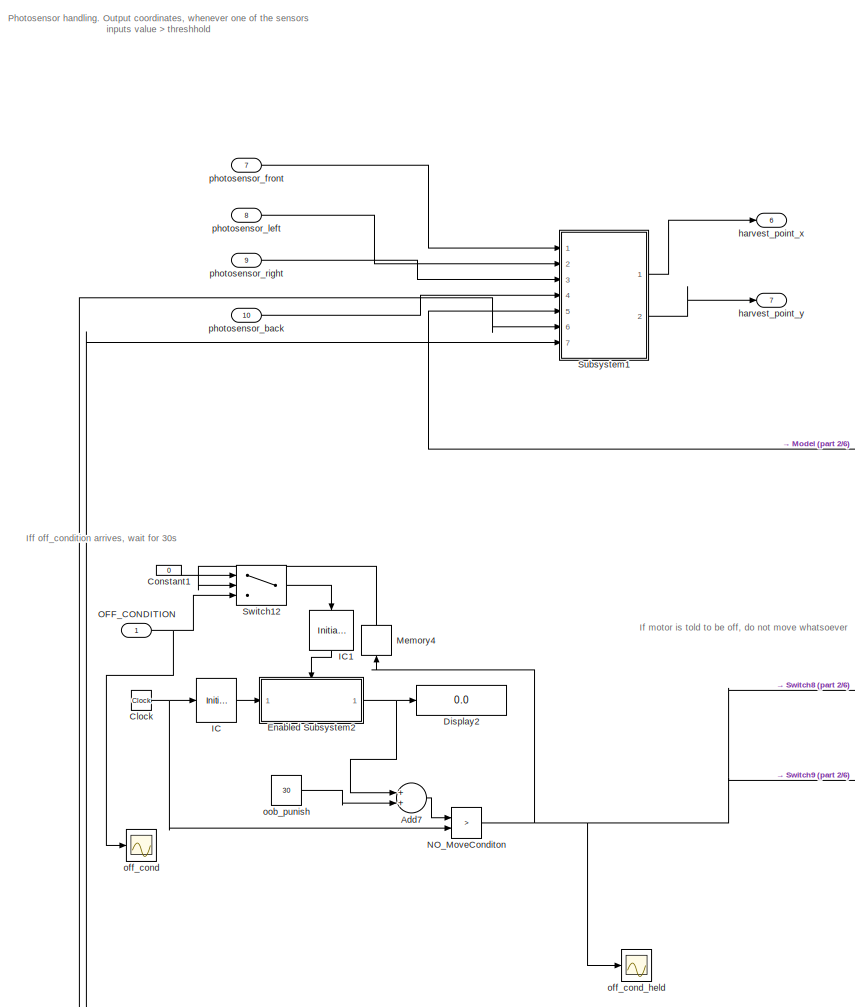
[diagram: root canvas - part 1/6, top left region]
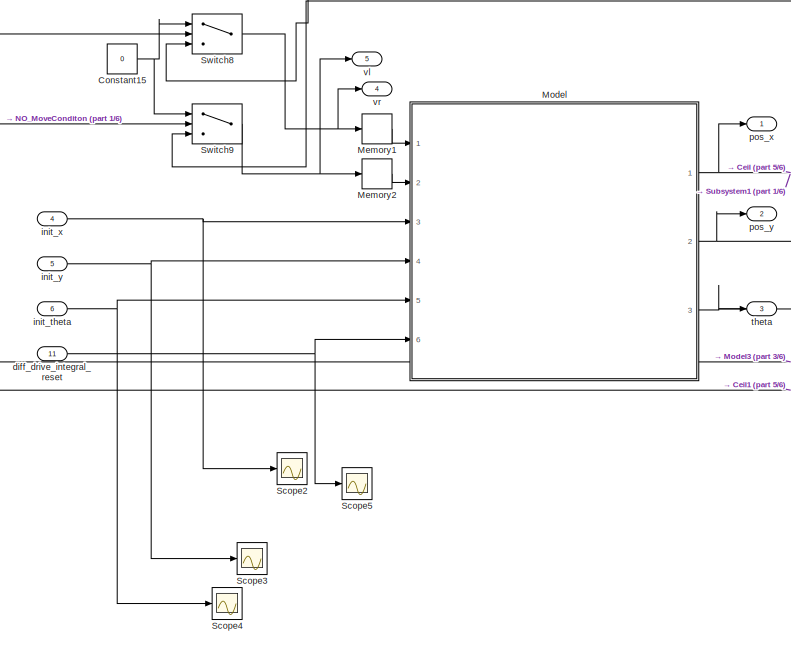
[diagram: root canvas - part 2/6, central region]
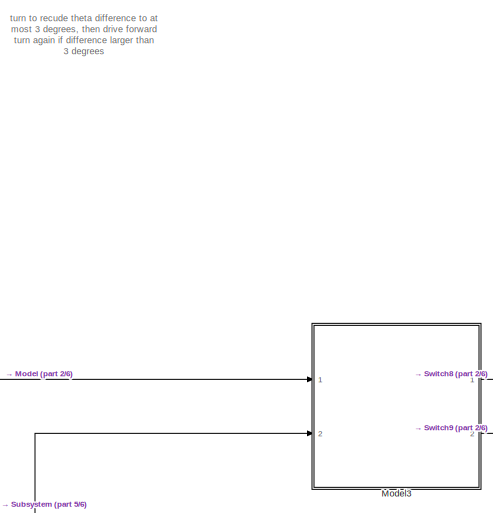
[diagram: root canvas - part 3/6, middle right region]
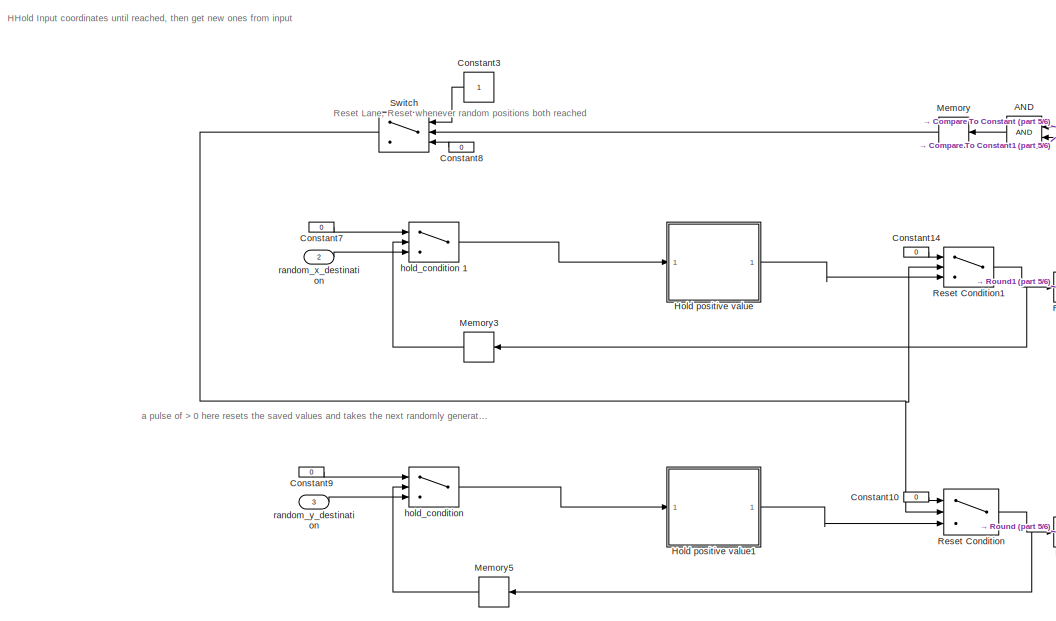
[diagram: root canvas - part 4/6, bottom left region]
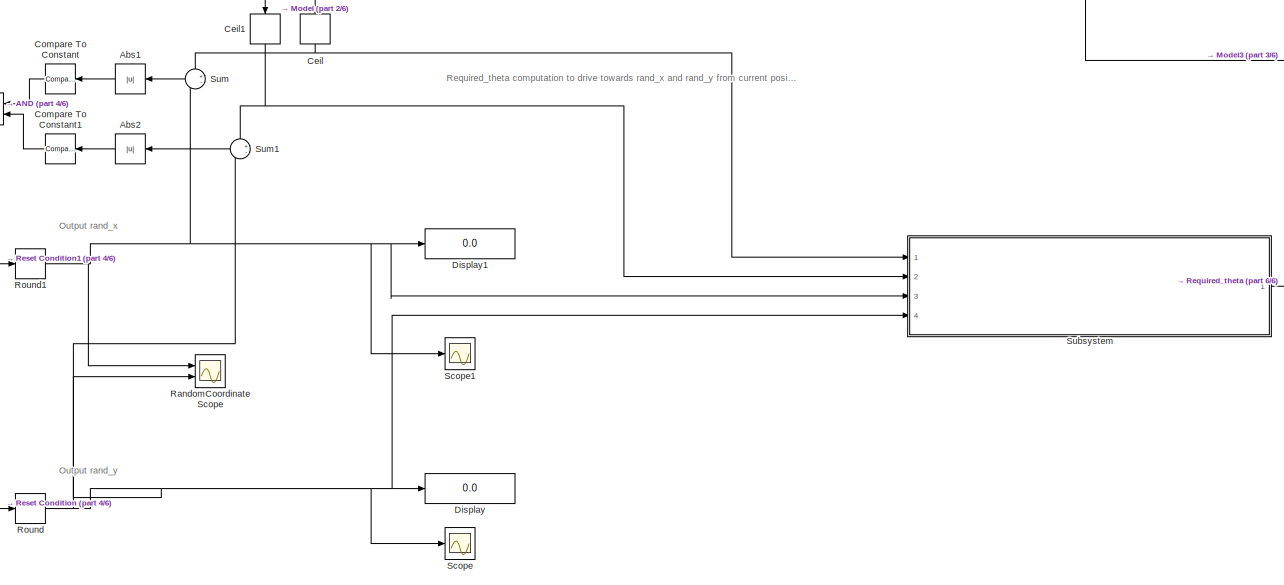
[diagram: root canvas - part 5/6, bottom right region]
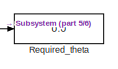
[diagram: root canvas - part 6/6, bottom right region]
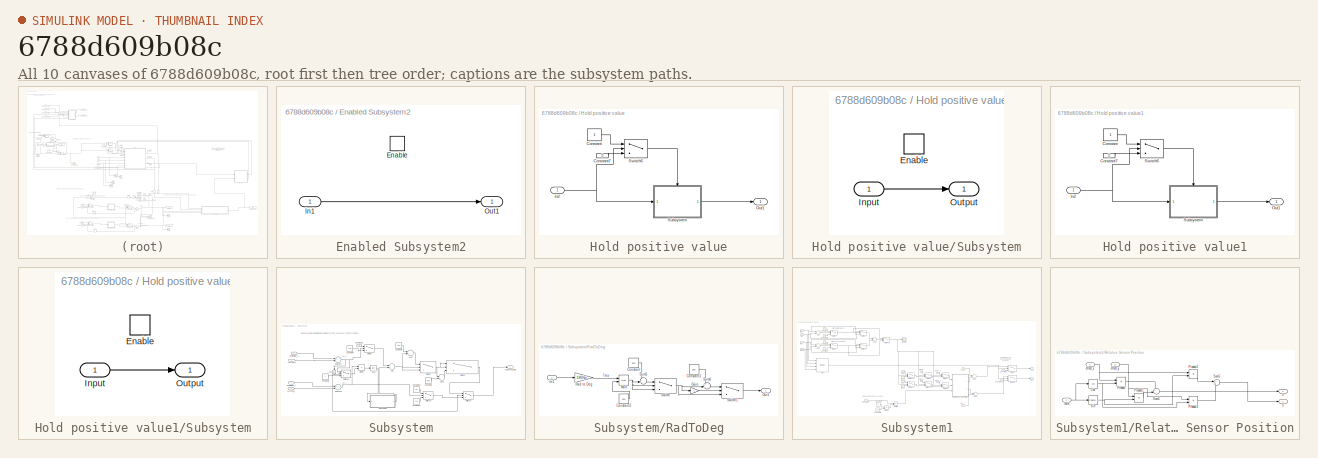
[diagram: thumbnail index - all 10 canvases of the model, root first then tree order]
MODEL slx_6788d609b08c
KIND model
CONFIG AbsTol = auto
CONFIG EnableMultiTasking = off
CONFIG FixedStep = 0.01
CONFIG MaxStep = auto
CONFIG MinStep = auto
CONFIG RelTol = 1e-5
CONFIG SampleTimeConstraint = Unconstrained
CONFIG Solver = VariableStepAuto
CONFIG SolverName = VariableStepAuto
CONFIG StartTime = 0.0
CONFIG StopTime = 500
BLOCK [Logic] AND
  AllPortsSameDT = off
  IconShape = distinctive
  OutDataTypeStr = boolean
  Ports = [2, 1]
BLOCK [Abs] Abs1
  SaturateOnIntegerOverflow = off
BLOCK [Abs] Abs2
  SaturateOnIntegerOverflow = off
BLOCK [Sum] Add7
  InputSameDT = off
  OutDataTypeStr = Inherit: Inherit via internal rule
  Ports = [2, 1]
  SaturateOnIntegerOverflow = off
BLOCK [Rounding] Ceil
  Operator = ceil
BLOCK [Rounding] Ceil1
  Operator = ceil
BLOCK [Clock] Clock
BLOCK [Reference] Compare To Constant  REF=simulink/Logic and Bit
Operations/Compare
To Constant
  Ports = [1, 1]
  SourceBlock = simulink/Logic and Bit\nOperations/Compare\nTo Constant
  SourceProductBaseCode = SL
  SourceProductName = Simulink
  SourceType = Compare To Constant
BLOCK [Reference] Compare To Constant1  REF=simulink/Logic and Bit
Operations/Compare
To Constant
  Ports = [1, 1]
  SourceBlock = simulink/Logic and Bit\nOperations/Compare\nTo Constant
  SourceProductBaseCode = SL
  SourceProductName = Simulink
  SourceType = Compare To Constant
BLOCK [Constant] Constant1
  Value = 0
BLOCK [Constant] Constant10
  Value = 0
BLOCK [Constant] Constant14
  Value = 0
BLOCK [Constant] Constant15
  Value = 0
BLOCK [Constant] Constant3
BLOCK [Constant] Constant7
  Value = 0
BLOCK [Constant] Constant8
  Value = 0
BLOCK [Constant] Constant9
  Value = 0
BLOCK [Display] Display
  Decimation = 1
  Ports = [1]
BLOCK [Display] Display1
  Decimation = 1
  Ports = [1]
BLOCK [Display] Display2
  Decimation = 1
  Ports = [1]
BLOCK [SubSystem] Enabled Subsystem2
  Ports = [1, 1, 1]
  RequestExecContextInheritance = off
  TreatAsAtomicUnit = on
BLOCK [EnablePort] Enabled Subsystem2/Enable
  Ports = []
BLOCK [Inport] Enabled Subsystem2/In1
  IconDisplay = Port number
BLOCK [Outport] Enabled Subsystem2/Out1
  IconDisplay = Port number
BLOCK [SubSystem] Hold positive value
  Ports = [1, 1]
  RequestExecContextInheritance = off
BLOCK [Constant] Hold positive value/Constant
BLOCK [Constant] Hold positive value/Constant7
  Value = 0
BLOCK [Inport] Hold positive value/In2
  IconDisplay = Port number
BLOCK [Outport] Hold positive value/Out1
  IconDisplay = Port number
BLOCK [SubSystem] Hold positive value/Subsystem
  Ports = [1, 1, 1]
  RequestExecContextInheritance = off
BLOCK [EnablePort] Hold positive value/Subsystem/Enable
  Ports = []
BLOCK [Inport] Hold positive value/Subsystem/Input
  IconDisplay = Port number
BLOCK [Outport] Hold positive value/Subsystem/Output
  IconDisplay = Port number
BLOCK [Switch] Hold positive value/Switch6
  Criteria = u2 > Threshold
  InputSameDT = off
  SaturateOnIntegerOverflow = off
BLOCK [SubSystem] Hold positive value1
  Ports = [1, 1]
  RequestExecContextInheritance = off
BLOCK [Constant] Hold positive value1/Constant
BLOCK [Constant] Hold positive value1/Constant7
  Value = 0
BLOCK [Inport] Hold positive value1/In2
  IconDisplay = Port number
BLOCK [Outport] Hold positive value1/Out1
  IconDisplay = Port number
BLOCK [SubSystem] Hold positive value1/Subsystem
  Ports = [1, 1, 1]
  RequestExecContextInheritance = off
BLOCK [EnablePort] Hold positive value1/Subsystem/Enable
  Ports = []
BLOCK [Inport] Hold positive value1/Subsystem/Input
  IconDisplay = Port number
BLOCK [Outport] Hold positive value1/Subsystem/Output
  IconDisplay = Port number
BLOCK [Switch] Hold positive value1/Switch6
  Criteria = u2 > Threshold
  InputSameDT = off
  SaturateOnIntegerOverflow = off
BLOCK [InitialCondition] IC
  Value = -30
BLOCK [InitialCondition] IC1
BLOCK [Memory] Memory
BLOCK [Memory] Memory1
BLOCK [Memory] Memory2
BLOCK [Memory] Memory3
  InheritSampleTime = on
BLOCK [Memory] Memory4
BLOCK [Memory] Memory5
  InheritSampleTime = on
BLOCK [ModelReference] Model
  ModelNameDialog = differential_drive.slx
  ModelReferenceVersion = 1.313
  Ports = [6, 3]
BLOCK [ModelReference] Model3
  ModelNameDialog = theta_correction.slx
  ModelReferenceVersion = 1.14
  Ports = [2, 2]
BLOCK [RelationalOperator] NO_MoveConditon
  InputSameDT = off
  Operator = >
  OutDataTypeStr = boolean
  Ports = [2, 1]
  RndMeth = Simplest
BLOCK [Inport] OFF_CONDITION 
  IconDisplay = Port number
  OutDataTypeStr = boolean
BLOCK [Scope] RandomCoordinate Scope 
  Floating = off
  NumInputPorts = 2
  Ports = [2]
  ScopeSpecificationString = Simulink.scopes.TimeScopeBlockCfg('CurrentConfiguration', extmgr.ConfigurationSet(extmgr.Configuration('Core','General UI',true),extmgr.Configuration('Core','Source UI',true),extmgr.Configuration('Sources','WiredSimulink',true,'DataLoggingVariableName','ScopeData1'),extmgr.Configuration('Visuals','Time Domain',true,'SerializedDisplays',{struct('MinYLimReal','-24.5','MaxYLimReal','220.5','YLabelRea...<+1708ch>
BLOCK [Display] Required_theta
  Decimation = 1
  Ports = [1]
BLOCK [Switch] Reset Condition
  Criteria = u2 > Threshold
  InputSameDT = off
  SaturateOnIntegerOverflow = off
BLOCK [Switch] Reset Condition1
  Criteria = u2 > Threshold
  InputSameDT = off
  SaturateOnIntegerOverflow = off
BLOCK [Rounding] Round
  Operator = ceil
BLOCK [Rounding] Round1
  Operator = ceil
BLOCK [Scope] Scope
  Floating = off
  NumInputPorts = 1
  Ports = [1]
  ScopeSpecificationString = Simulink.scopes.TimeScopeBlockCfg('CurrentConfiguration', extmgr.ConfigurationSet(extmgr.Configuration('Core','General UI',true),extmgr.Configuration('Core','Source UI',true),extmgr.Configuration('Sources','WiredSimulink',true,'DataLoggingVariableName','ScopeData1'),extmgr.Configuration('Visuals','Time Domain',true,'SerializedDisplays',{struct('MinYLimReal','-4.875','MaxYLimReal','43.875','YLabelR...<+1356ch>
BLOCK [Scope] Scope1
  Floating = off
  NumInputPorts = 1
  Ports = [1]
  ScopeSpecificationString = Simulink.scopes.TimeScopeBlockCfg('CurrentConfiguration', extmgr.ConfigurationSet(extmgr.Configuration('Core','General UI',true),extmgr.Configuration('Core','Source UI',true),extmgr.Configuration('Sources','WiredSimulink',true,'DataLoggingVariableName','ScopeData2'),extmgr.Configuration('Visuals','Time Domain',true,'SerializedDisplays',{struct('MinYLimReal','-21.375','MaxYLimReal','192.375','YLabe...<+1363ch>
BLOCK [Scope] Scope2
  Floating = off
  NumInputPorts = 1
  Ports = [1]
  ScopeSpecificationString = Simulink.scopes.TimeScopeBlockCfg('CurrentConfiguration', extmgr.ConfigurationSet(extmgr.Configuration('Core','General UI',true),extmgr.Configuration('Core','Source UI',true),extmgr.Configuration('Sources','WiredSimulink',true,'DataLoggingVariableName','ScopeData1'),extmgr.Configuration('Visuals','Time Domain',true,'SerializedDisplays',{struct('MinYLimReal','-21.00000','MaxYLimReal','189.00000','Y...<+1423ch>
BLOCK [Scope] Scope3
  Floating = off
  NumInputPorts = 1
  Ports = [1]
  ScopeSpecificationString = Simulink.scopes.TimeScopeBlockCfg('CurrentConfiguration', extmgr.ConfigurationSet(extmgr.Configuration('Core','General UI',true),extmgr.Configuration('Core','Source UI',true),extmgr.Configuration('Sources','WiredSimulink',true,'DataLoggingVariableName','ScopeData2'),extmgr.Configuration('Visuals','Time Domain',true,'SerializedDisplays',{struct('MinYLimReal','-2.75','MaxYLimReal','24.75','YLabelRea...<+1351ch>
BLOCK [Scope] Scope4
  Floating = off
  NumInputPorts = 1
  Ports = [1]
  ScopeSpecificationString = Simulink.scopes.TimeScopeBlockCfg('CurrentConfiguration', extmgr.ConfigurationSet(extmgr.Configuration('Core','General UI',true),extmgr.Configuration('Core','Source UI',true),extmgr.Configuration('Sources','WiredSimulink',true,'DataLoggingVariableName','ScopeData3'),extmgr.Configuration('Visuals','Time Domain',true,'SerializedDisplays',{struct('MinYLimReal','-112.25','MaxYLimReal','110.25','YLabel...<+1413ch>
BLOCK [Scope] Scope5
  Floating = off
  NumInputPorts = 1
  Ports = [1]
  ScopeSpecificationString = Simulink.scopes.TimeScopeBlockCfg('CurrentConfiguration', extmgr.ConfigurationSet(extmgr.Configuration('Core','General UI',true),extmgr.Configuration('Core','Source UI',true),extmgr.Configuration('Sources','WiredSimulink',true,'DataLoggingVariableName','ScopeData4'),extmgr.Configuration('Visuals','Time Domain',true,'SerializedDisplays',{struct('MinYLimReal','-0.125','MaxYLimReal','1.125','YLabelRe...<+1419ch>
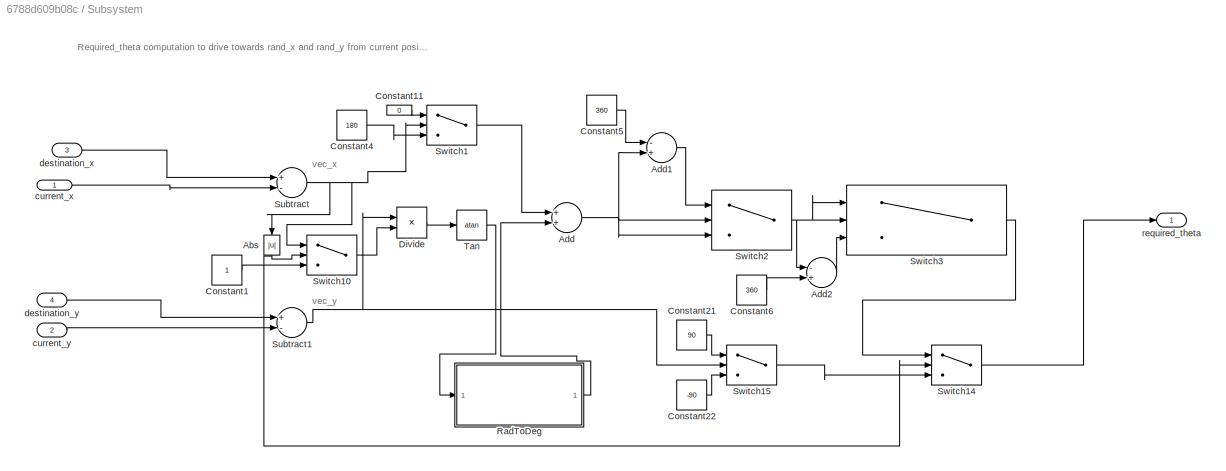
BLOCK [SubSystem] Subsystem
  Ports = [4, 1]
  RequestExecContextInheritance = off
BLOCK [Abs] Subsystem/Abs
  SaturateOnIntegerOverflow = off
BLOCK [Sum] Subsystem/Add
  InputSameDT = off
  OutDataTypeStr = Inherit: Inherit via internal rule
  Ports = [2, 1]
  SaturateOnIntegerOverflow = off
BLOCK [Sum] Subsystem/Add1
  InputSameDT = off
  Inputs = -+
  OutDataTypeStr = Inherit: Inherit via internal rule
  Ports = [2, 1]
  SaturateOnIntegerOverflow = off
BLOCK [Sum] Subsystem/Add2
  InputSameDT = off
  Inputs = -+
  OutDataTypeStr = Inherit: Inherit via internal rule
  Ports = [2, 1]
  SaturateOnIntegerOverflow = off
BLOCK [Constant] Subsystem/Constant1
BLOCK [Constant] Subsystem/Constant11
  Value = 0
BLOCK [Constant] Subsystem/Constant21
  Value = 90
BLOCK [Constant] Subsystem/Constant22
  Value = -90
BLOCK [Constant] Subsystem/Constant4
  Value = 180
BLOCK [Constant] Subsystem/Constant5
  Value = 360
BLOCK [Constant] Subsystem/Constant6
  Value = 360
BLOCK [Product] Subsystem/Divide
  InputSameDT = off
  Inputs = */
  OutDataTypeStr = Inherit: Inherit via internal rule
  Ports = [2, 1]
  RndMeth = Floor
  SaturateOnIntegerOverflow = off
BLOCK [SubSystem] Subsystem/RadToDeg
  Ports = [1, 1]
  RequestExecContextInheritance = off
BLOCK [Constant] Subsystem/RadToDeg/Constant
  Value = 360
BLOCK [Constant] Subsystem/RadToDeg/Constant1
  Value = 360
BLOCK [Constant] Subsystem/RadToDeg/Constant2
  Value = 360
BLOCK [Gain] Subsystem/RadToDeg/Gain
  Gain = -1
  OutDataTypeStr = Inherit: Inherit via internal rule
  ParamDataTypeStr = Inherit: Inherit via internal rule
  SaturateOnIntegerOverflow = off
BLOCK [Inport] Subsystem/RadToDeg/In1
  IconDisplay = Port number
BLOCK [Math] Subsystem/RadToDeg/Mod
  Operator = mod
  Ports = [2, 1]
BLOCK [Outport] Subsystem/RadToDeg/Out1
  IconDisplay = Port number
BLOCK [Gain] Subsystem/RadToDeg/Rad to Deg
  Gain = 180/pi
  OutDataTypeStr = Inherit: Inherit via internal rule
  ParamDataTypeStr = Inherit: Inherit via internal rule
  SaturateOnIntegerOverflow = off
BLOCK [Sum] Subsystem/RadToDeg/Sum5
  IconShape = round
  InputSameDT = off
  Inputs = -+|
  OutDataTypeStr = Inherit: Inherit via internal rule
  Ports = [2, 1]
  SaturateOnIntegerOverflow = off
BLOCK [Sum] Subsystem/RadToDeg/Sum6
  IconShape = round
  InputSameDT = off
  Inputs = ++|
  OutDataTypeStr = Inherit: Inherit via internal rule
  Ports = [2, 1]
  SaturateOnIntegerOverflow = off
BLOCK [Switch] Subsystem/RadToDeg/Switch
  Criteria = u2 > Threshold
  InputSameDT = off
  SaturateOnIntegerOverflow = off
  Threshold = 180
  ZeroCross = off
BLOCK [Switch] Subsystem/RadToDeg/Switch1
  Criteria = u2 > Threshold
  InputSameDT = off
  SaturateOnIntegerOverflow = off
  Threshold = 180
BLOCK [Sum] Subsystem/Subtract
  InputSameDT = off
  Inputs = +-
  OutDataTypeStr = Inherit: Inherit via internal rule
  Ports = [2, 1]
  SaturateOnIntegerOverflow = off
BLOCK [Sum] Subsystem/Subtract1
  InputSameDT = off
  Inputs = +-
  OutDataTypeStr = Inherit: Inherit via internal rule
  Ports = [2, 1]
  SaturateOnIntegerOverflow = off
BLOCK [Switch] Subsystem/Switch1
  InputSameDT = off
  SaturateOnIntegerOverflow = off
  ZeroCross = off
BLOCK [Switch] Subsystem/Switch10
  Criteria = u2 > Threshold
  InputSameDT = off
  SaturateOnIntegerOverflow = off
  Threshold = 1
  ZeroCross = off
BLOCK [Switch] Subsystem/Switch14
  Criteria = u2 > Threshold
  InputSameDT = off
  SaturateOnIntegerOverflow = off
  Threshold = 1
  ZeroCross = off
BLOCK [Switch] Subsystem/Switch15
  Criteria = u2 > Threshold
  InputSameDT = off
  SaturateOnIntegerOverflow = off
  ZeroCross = off
BLOCK [Switch] Subsystem/Switch2
  Criteria = u2 > Threshold
  InputSameDT = off
  SaturateOnIntegerOverflow = off
  Threshold = 180
  ZeroCross = off
BLOCK [Switch] Subsystem/Switch3
  InputSameDT = off
  SaturateOnIntegerOverflow = off
  Threshold = -180
  ZeroCross = off
BLOCK [Trigonometry] Subsystem/Tan
  Operator = atan
  OutputSignalType = real
  Ports = [1, 1]
BLOCK [Inport] Subsystem/current_x
  IconDisplay = Port number
BLOCK [Inport] Subsystem/current_y
  IconDisplay = Port number
  Port = 2
BLOCK [Inport] Subsystem/destination_x
  IconDisplay = Port number
  Port = 3
BLOCK [Inport] Subsystem/destination_y
  IconDisplay = Port number
  Port = 4
BLOCK [Outport] Subsystem/required_theta
  IconDisplay = Port number
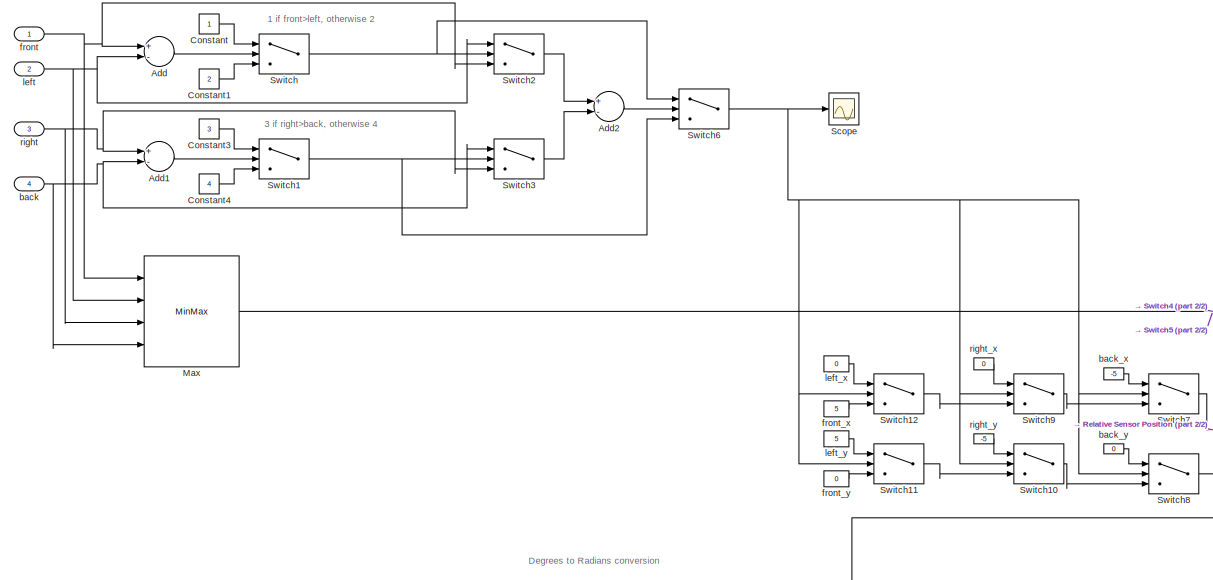
[diagram: Subsystem1 - part 1/2, left side, full height]
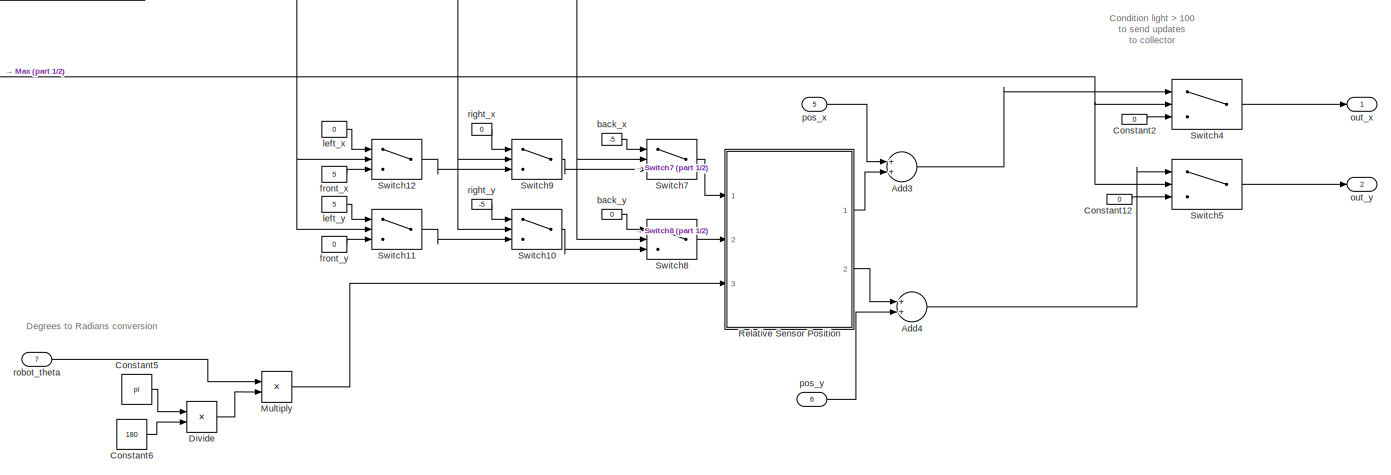
[diagram: Subsystem1 - part 2/2, full width, bottom band]
BLOCK [SubSystem] Subsystem1
  Ports = [7, 2]
  RequestExecContextInheritance = off
BLOCK [Sum] Subsystem1/Add
  InputSameDT = off
  Inputs = +-
  OutDataTypeStr = Inherit: Inherit via internal rule
  Ports = [2, 1]
  SaturateOnIntegerOverflow = off
BLOCK [Sum] Subsystem1/Add1
  InputSameDT = off
  Inputs = +-
  OutDataTypeStr = Inherit: Inherit via internal rule
  Ports = [2, 1]
  SaturateOnIntegerOverflow = off
BLOCK [Sum] Subsystem1/Add2
  InputSameDT = off
  Inputs = +-
  OutDataTypeStr = Inherit: Inherit via internal rule
  Ports = [2, 1]
  SaturateOnIntegerOverflow = off
BLOCK [Sum] Subsystem1/Add3
  InputSameDT = off
  OutDataTypeStr = Inherit: Inherit via internal rule
  Ports = [2, 1]
  SaturateOnIntegerOverflow = off
BLOCK [Sum] Subsystem1/Add4
  InputSameDT = off
  OutDataTypeStr = Inherit: Inherit via internal rule
  Ports = [2, 1]
  SaturateOnIntegerOverflow = off
BLOCK [Constant] Subsystem1/Constant
BLOCK [Constant] Subsystem1/Constant1
  Value = 2
BLOCK [Constant] Subsystem1/Constant12
  Value = 0
BLOCK [Constant] Subsystem1/Constant2
  Value = 0
BLOCK [Constant] Subsystem1/Constant3
  Value = 3
BLOCK [Constant] Subsystem1/Constant4
  Value = 4
BLOCK [Constant] Subsystem1/Constant5
  Value = pi
BLOCK [Constant] Subsystem1/Constant6
  Value = 180
BLOCK [Product] Subsystem1/Divide
  InputSameDT = off
  Inputs = */
  OutDataTypeStr = Inherit: Inherit via internal rule
  Ports = [2, 1]
  RndMeth = Floor
  SaturateOnIntegerOverflow = off
BLOCK [MinMax] Subsystem1/Max
  Function = max
  InputSameDT = off
  Inputs = 4
  Ports = [4, 1]
  SaturateOnIntegerOverflow = off
BLOCK [Product] Subsystem1/Multiply
  InputSameDT = off
  OutDataTypeStr = Inherit: Inherit via internal rule
  Ports = [2, 1]
  RndMeth = Floor
  SaturateOnIntegerOverflow = off
BLOCK [SubSystem] Subsystem1/Relative Sensor Position
  Ports = [3, 2]
  RequestExecContextInheritance = off
  TreatAsAtomicUnit = on
BLOCK [Trigonometry] Subsystem1/Relative Sensor Position/Cos
  Operator = cos
  Ports = [1, 1]
BLOCK [Product] Subsystem1/Relative Sensor Position/Product
  InputSameDT = off
  OutDataTypeStr = Inherit: Inherit via internal rule
  Ports = [2, 1]
  RndMeth = Floor
  SaturateOnIntegerOverflow = off
BLOCK [Product] Subsystem1/Relative Sensor Position/Product1
  InputSameDT = off
  OutDataTypeStr = Inherit: Inherit via internal rule
  Ports = [2, 1]
  RndMeth = Floor
  SaturateOnIntegerOverflow = off
BLOCK [Product] Subsystem1/Relative Sensor Position/Product2
  InputSameDT = off
  OutDataTypeStr = Inherit: Inherit via internal rule
  Ports = [2, 1]
  RndMeth = Floor
  SaturateOnIntegerOverflow = off
BLOCK [Product] Subsystem1/Relative Sensor Position/Product3
  InputSameDT = off
  OutDataTypeStr = Inherit: Inherit via internal rule
  Ports = [2, 1]
  RndMeth = Floor
  SaturateOnIntegerOverflow = off
BLOCK [Trigonometry] Subsystem1/Relative Sensor Position/Sin
  Ports = [1, 1]
BLOCK [Sum] Subsystem1/Relative Sensor Position/Sum4
  IconShape = round
  InputSameDT = off
  Inputs = +-
  OutDataTypeStr = Inherit: Inherit via internal rule
  Ports = [2, 1]
  SaturateOnIntegerOverflow = off
BLOCK [Sum] Subsystem1/Relative Sensor Position/Sum5
  IconShape = round
  InputSameDT = off
  OutDataTypeStr = Inherit: Inherit via internal rule
  Ports = [2, 1]
  SaturateOnIntegerOverflow = off
BLOCK [Inport] Subsystem1/Relative Sensor Position/offset_x
  IconDisplay = Port number
BLOCK [Inport] Subsystem1/Relative Sensor Position/offset_y
  IconDisplay = Port number
  Port = 2
BLOCK [Inport] Subsystem1/Relative Sensor Position/theta
  IconDisplay = Port number
  Port = 3
BLOCK [Outport] Subsystem1/Relative Sensor Position/x
  IconDisplay = Port number
BLOCK [Outport] Subsystem1/Relative Sensor Position/y
  IconDisplay = Port number
  Port = 2
BLOCK [Scope] Subsystem1/Scope
  Floating = off
  NumInputPorts = 1
  Ports = [1]
  ScopeSpecificationString = Simulink.scopes.TimeScopeBlockCfg('CurrentConfiguration', extmgr.ConfigurationSet(extmgr.Configuration('Core','General UI',true),extmgr.Configuration('Core','Source UI',true),extmgr.Configuration('Sources','WiredSimulink',true,'DataLoggingVariableName','ScopeData1'),extmgr.Configuration('Visuals','Time Domain',true,'SerializedDisplays',{struct('MinYLimReal','0.625','MaxYLimReal','4.375','YLabelRea...<+1348ch>
BLOCK [Switch] Subsystem1/Switch
  Criteria = u2 > Threshold
  InputSameDT = off
  SaturateOnIntegerOverflow = off
  ZeroCross = off
BLOCK [Switch] Subsystem1/Switch1
  Criteria = u2 > Threshold
  InputSameDT = off
  SaturateOnIntegerOverflow = off
  ZeroCross = off
BLOCK [Switch] Subsystem1/Switch10
  InputSameDT = off
  SaturateOnIntegerOverflow = off
  Threshold = 3
BLOCK [Switch] Subsystem1/Switch11
  InputSameDT = off
  SaturateOnIntegerOverflow = off
  Threshold = 2
BLOCK [Switch] Subsystem1/Switch12
  InputSameDT = off
  SaturateOnIntegerOverflow = off
  Threshold = 2
BLOCK [Switch] Subsystem1/Switch2
  Criteria = u2 > Threshold
  InputSameDT = off
  SaturateOnIntegerOverflow = off
  Threshold = 1
  ZeroCross = off
BLOCK [Switch] Subsystem1/Switch3
  Criteria = u2 > Threshold
  InputSameDT = off
  SaturateOnIntegerOverflow = off
  Threshold = 3
  ZeroCross = off
BLOCK [Switch] Subsystem1/Switch4
  Criteria = u2 > Threshold
  InputSameDT = off
  SaturateOnIntegerOverflow = off
  Threshold = 100
BLOCK [Switch] Subsystem1/Switch5
  Criteria = u2 > Threshold
  InputSameDT = off
  SaturateOnIntegerOverflow = off
  Threshold = 100
BLOCK [Switch] Subsystem1/Switch6
  Criteria = u2 > Threshold
  InputSameDT = off
  SaturateOnIntegerOverflow = off
  ZeroCross = off
BLOCK [Switch] Subsystem1/Switch7
  InputSameDT = off
  SaturateOnIntegerOverflow = off
  Threshold = 4
BLOCK [Switch] Subsystem1/Switch8
  InputSameDT = off
  SaturateOnIntegerOverflow = off
  Threshold = 4
BLOCK [Switch] Subsystem1/Switch9
  InputSameDT = off
  SaturateOnIntegerOverflow = off
  Threshold = 3
BLOCK [Inport] Subsystem1/back
  IconDisplay = Port number
  Port = 4
BLOCK [Constant] Subsystem1/back_x 
  Value = -5
BLOCK [Constant] Subsystem1/back_y
  Value = 0
BLOCK [Inport] Subsystem1/front
  IconDisplay = Port number
BLOCK [Constant] Subsystem1/front_x
  Value = 5
BLOCK [Constant] Subsystem1/front_y
  Value = 0
BLOCK [Inport] Subsystem1/left
  IconDisplay = Port number
  Port = 2
BLOCK [Constant] Subsystem1/left_x
  Value = 0
BLOCK [Constant] Subsystem1/left_y
  Value = 5
BLOCK [Outport] Subsystem1/out_x
  IconDisplay = Port number
BLOCK [Outport] Subsystem1/out_y
  IconDisplay = Port number
  Port = 2
BLOCK [Inport] Subsystem1/pos_x
  IconDisplay = Port number
  Port = 5
BLOCK [Inport] Subsystem1/pos_y
  IconDisplay = Port number
  Port = 6
BLOCK [Inport] Subsystem1/right
  IconDisplay = Port number
  Port = 3
BLOCK [Constant] Subsystem1/right_x
  Value = 0
BLOCK [Constant] Subsystem1/right_y
  Value = -5
BLOCK [Inport] Subsystem1/robot_theta
  IconDisplay = Port number
  Port = 7
BLOCK [Sum] Sum
  IconShape = round
  InputSameDT = off
  Inputs = +-
  OutDataTypeStr = Inherit: Inherit via internal rule
  Ports = [2, 1]
  SaturateOnIntegerOverflow = off
BLOCK [Sum] Sum1
  IconShape = round
  InputSameDT = off
  Inputs = +-
  OutDataTypeStr = Inherit: Inherit via internal rule
  Ports = [2, 1]
  SaturateOnIntegerOverflow = off
BLOCK [Switch] Switch
  Criteria = u2 > Threshold
  InputSameDT = off
  SaturateOnIntegerOverflow = off
BLOCK [Switch] Switch12
  Criteria = u2 > Threshold
  InputSameDT = off
  SaturateOnIntegerOverflow = off
BLOCK [Switch] Switch8
  Criteria = u2 > Threshold
  InputSameDT = off
  SaturateOnIntegerOverflow = off
BLOCK [Switch] Switch9
  Criteria = u2 > Threshold
  InputSameDT = off
  SaturateOnIntegerOverflow = off
BLOCK [Inport] diff_drive_integral_reset
  IconDisplay = Port number
  Port = 11
BLOCK [Outport] harvest_point_x
  IconDisplay = Port number
  Port = 6
BLOCK [Outport] harvest_point_y
  IconDisplay = Port number
  Port = 7
BLOCK [Switch] hold_condition 
  Criteria = u2 > Threshold
  InputSameDT = off
  SaturateOnIntegerOverflow = off
BLOCK [Switch] hold_condition 1
  Criteria = u2 > Threshold
  InputSameDT = off
  SaturateOnIntegerOverflow = off
BLOCK [Inport] init_theta 
  IconDisplay = Port number
  Port = 6
BLOCK [Inport] init_x 
  IconDisplay = Port number
  Port = 4
BLOCK [Inport] init_y
  IconDisplay = Port number
  Port = 5
BLOCK [Scope] off_cond
  Floating = off
  NumInputPorts = 1
  Ports = [1]
  ScopeSpecificationString = Simulink.scopes.TimeScopeBlockCfg('CurrentConfiguration', extmgr.ConfigurationSet(extmgr.Configuration('Core','General UI',true),extmgr.Configuration('Core','Source UI',true),extmgr.Configuration('Sources','WiredSimulink',true,'DataLoggingVariableName','ScopeData1'),extmgr.Configuration('Visuals','Time Domain',true),extmgr.Configuration('Tools','Plot Navigation',true),extmgr.Configuration('Tools',...<+40ch>
BLOCK [Scope] off_cond_held
  Floating = off
  NumInputPorts = 1
  Ports = [1]
  ScopeSpecificationString = Simulink.scopes.TimeScopeBlockCfg('CurrentConfiguration', extmgr.ConfigurationSet(extmgr.Configuration('Core','General UI',true),extmgr.Configuration('Core','Source UI',true),extmgr.Configuration('Sources','WiredSimulink',true,'DataLoggingVariableName','ScopeData1'),extmgr.Configuration('Visuals','Time Domain',true,'SerializedDisplays',{struct('MinYLimReal','-0.125','MaxYLimReal','1.125','YLabelRe...<+1362ch>
BLOCK [Constant] oob_punish
  Value = 30
BLOCK [Inport] photosensor_back
  IconDisplay = Port number
  Port = 10
BLOCK [Inport] photosensor_front 
  IconDisplay = Port number
  Port = 7
BLOCK [Inport] photosensor_left
  IconDisplay = Port number
  Port = 8
BLOCK [Inport] photosensor_right
  IconDisplay = Port number
  Port = 9
BLOCK [Outport] pos_x
  IconDisplay = Port number
BLOCK [Outport] pos_y
  IconDisplay = Port number
  Port = 2
BLOCK [Inport] random_x_destination
  IconDisplay = Port number
  Port = 2
BLOCK [Inport] random_y_destination
  IconDisplay = Port number
  Port = 3
BLOCK [Outport] theta
  IconDisplay = Port number
  Port = 3
BLOCK [Outport] vl
  IconDisplay = Port number
  Port = 5
BLOCK [Outport] vr
  IconDisplay = Port number
  Port = 4
ANNOTATION (root): HHold Input coordinates until reached, then get new ones from input
ANNOTATION (root): If motor is told to be off, do not move whatsoever
ANNOTATION (root): Iff off_condition arrives, wait for 30s
ANNOTATION (root): Output rand_x
ANNOTATION (root): Output rand_y
ANNOTATION (root): Photosensor handling. Output coordinates, whenever one of the sensors inputs value > threshhold
ANNOTATION (root): Required_theta computation to drive towards rand_x and rand_y from current position
ANNOTATION (root): Reset Lane, Reset whenever random positions both reached
ANNOTATION (root): a pulse of > 0 here resets the saved values and takes the next randomly generated value
ANNOTATION (root): turn to recude theta difference to at most 3 degrees, then drive forward turn again if difference larger than 3 degrees
ANNOTATION Subsystem: Required_theta computation to drive towards rand_x and rand_y from current position
ANNOTATION Subsystem: vec_x
ANNOTATION Subsystem: vec_y
ANNOTATION Subsystem1: 1 if front>left, otherwise 2
ANNOTATION Subsystem1: 3 if right>back, otherwise 4
ANNOTATION Subsystem1: Condition light > 100 to send updates to collector
ANNOTATION Subsystem1: Degrees to Radians conversion
LINE AND:1 -> Memory:1
LINE Abs1:1 -> Compare To Constant:1
LINE Abs2:1 -> Compare To Constant1:1
LINE Add7:1 -> NO_MoveConditon:1
NET Ceil1:1 -> Subsystem:2, Sum1:1
NET Ceil:1 -> Subsystem:1, Sum:1
NET Clock:1 -> IC:1, NO_MoveConditon:2
LINE Compare To Constant1:1 -> AND:2
LINE Compare To Constant:1 -> AND:1
LINE Constant10:1 -> Reset Condition:1
LINE Constant14:1 -> Reset Condition1:1
NET Constant15:1 -> Switch8:1, Switch9:1
LINE Constant1:1 -> Switch12:1
LINE Constant3:1 -> Switch:1
LINE Constant7:1 -> hold_condition 1:1
LINE Constant8:1 -> Switch:3
LINE Constant9:1 -> hold_condition :1
LINE Enabled Subsystem2/In1:1 -> Enabled Subsystem2/Out1:1
NET Enabled Subsystem2:1 -> Add7:1, Display2:1
LINE Hold positive value/Constant7:1 -> Hold positive value/Switch6:3
LINE Hold positive value/Constant:1 -> Hold positive value/Switch6:1
NET Hold positive value/In2:1 -> Hold positive value/Subsystem:1, Hold positive value/Switch6:2
LINE Hold positive value/Subsystem/Input:1 -> Hold positive value/Subsystem/Output:1
LINE Hold positive value/Subsystem:1 -> Hold positive value/Out1:1
LINE Hold positive value/Switch6:1 -> Hold positive value/Subsystem:enable
LINE Hold positive value1/Constant7:1 -> Hold positive value1/Switch6:3
LINE Hold positive value1/Constant:1 -> Hold positive value1/Switch6:1
NET Hold positive value1/In2:1 -> Hold positive value1/Subsystem:1, Hold positive value1/Switch6:2
LINE Hold positive value1/Subsystem/Input:1 -> Hold positive value1/Subsystem/Output:1
LINE Hold positive value1/Subsystem:1 -> Hold positive value1/Out1:1
LINE Hold positive value1/Switch6:1 -> Hold positive value1/Subsystem:enable
LINE Hold positive value1:1 -> Reset Condition:3
LINE Hold positive value:1 -> Reset Condition1:3
LINE IC1:1 -> Enabled Subsystem2:enable
LINE IC:1 -> Enabled Subsystem2:1
LINE Memory1:1 -> Model:1
LINE Memory2:1 -> Model:2
LINE Memory3:1 -> hold_condition 1:2
LINE Memory4:1 -> Switch12:2
LINE Memory5:1 -> hold_condition :2
LINE Memory:1 -> Switch:2
LINE Model3:1 -> Switch8:3
LINE Model3:2 -> Switch9:3
NET Model:1 -> Ceil:1, Subsystem1:5, pos_x:1
NET Model:2 -> Ceil1:1, Subsystem1:6, pos_y:1
NET Model:3 -> Model3:1, Subsystem1:7, theta:1
NET NO_MoveConditon:1 -> Memory4:1, Switch8:2, Switch9:2, off_cond_held:1
NET OFF_CONDITION :1 -> Switch12:3, off_cond:1
NET Reset Condition1:1 -> Memory3:1, Round1:1
NET Reset Condition:1 -> Memory5:1, Round:1
NET Round1:1 -> Display1:1, RandomCoordinate Scope :1, Scope1:1, Subsystem:3, Sum:2
NET Round:1 -> Display:1, RandomCoordinate Scope :2, Scope:1, Subsystem:4, Sum1:2
NET Subsystem/Abs:1 -> Subsystem/Switch10:2, Subsystem/Switch14:2
LINE Subsystem/Add1:1 -> Subsystem/Switch2:1
LINE Subsystem/Add2:1 -> Subsystem/Switch3:3
NET Subsystem/Add:1 -> Subsystem/Add1:2, Subsystem/Switch2:2, Subsystem/Switch2:3
LINE Subsystem/Constant11:1 -> Subsystem/Switch1:1
LINE Subsystem/Constant1:1 -> Subsystem/Switch10:3
LINE Subsystem/Constant21:1 -> Subsystem/Switch15:1
LINE Subsystem/Constant22:1 -> Subsystem/Switch15:3
LINE Subsystem/Constant4:1 -> Subsystem/Switch1:3
LINE Subsystem/Constant5:1 -> Subsystem/Add1:1
LINE Subsystem/Constant6:1 -> Subsystem/Add2:2
LINE Subsystem/Divide:1 -> Subsystem/Tan:1
LINE Subsystem/RadToDeg/Constant1:1 -> Subsystem/RadToDeg/Sum6:1
LINE Subsystem/RadToDeg/Constant2:1 -> Subsystem/RadToDeg/Mod:2
LINE Subsystem/RadToDeg/Constant:1 -> Subsystem/RadToDeg/Sum5:1
LINE Subsystem/RadToDeg/Gain:1 -> Subsystem/RadToDeg/Switch1:2
LINE Subsystem/RadToDeg/In1:1 -> Subsystem/RadToDeg/Rad to Deg:1
NET Subsystem/RadToDeg/Mod:1 -> Subsystem/RadToDeg/Sum5:2, Subsystem/RadToDeg/Switch:2, Subsystem/RadToDeg/Switch:3
LINE Subsystem/RadToDeg/Rad to Deg:1 -> Subsystem/RadToDeg/Mod:1
LINE Subsystem/RadToDeg/Sum5:1 -> Subsystem/RadToDeg/Switch:1
LINE Subsystem/RadToDeg/Sum6:1 -> Subsystem/RadToDeg/Switch1:1
LINE Subsystem/RadToDeg/Switch1:1 -> Subsystem/RadToDeg/Out1:1
NET Subsystem/RadToDeg/Switch:1 -> Subsystem/RadToDeg/Gain:1, Subsystem/RadToDeg/Sum6:2, Subsystem/RadToDeg/Switch1:3
LINE Subsystem/RadToDeg:1 -> Subsystem/Add:2
NET Subsystem/Subtract1:1 -> Subsystem/Divide:1, Subsystem/Switch15:2
NET Subsystem/Subtract:1 -> Subsystem/Abs:1, Subsystem/Switch10:1, Subsystem/Switch1:2
LINE Subsystem/Switch10:1 -> Subsystem/Divide:2
LINE Subsystem/Switch14:1 -> Subsystem/required_theta:1
LINE Subsystem/Switch15:1 -> Subsystem/Switch14:3
LINE Subsystem/Switch1:1 -> Subsystem/Add:1
NET Subsystem/Switch2:1 -> Subsystem/Add2:1, Subsystem/Switch3:1, Subsystem/Switch3:2
LINE Subsystem/Switch3:1 -> Subsystem/Switch14:1
LINE Subsystem/Tan:1 -> Subsystem/RadToDeg:1
LINE Subsystem/current_x:1 -> Subsystem/Subtract:2
LINE Subsystem/current_y:1 -> Subsystem/Subtract1:2
LINE Subsystem/destination_x:1 -> Subsystem/Subtract:1
LINE Subsystem/destination_y:1 -> Subsystem/Subtract1:1
LINE Subsystem1/Add1:1 -> Subsystem1/Switch1:2
LINE Subsystem1/Add2:1 -> Subsystem1/Switch6:2
LINE Subsystem1/Add3:1 -> Subsystem1/Switch4:1
LINE Subsystem1/Add4:1 -> Subsystem1/Switch5:1
LINE Subsystem1/Add:1 -> Subsystem1/Switch:2
LINE Subsystem1/Constant12:1 -> Subsystem1/Switch5:3
LINE Subsystem1/Constant1:1 -> Subsystem1/Switch:3
LINE Subsystem1/Constant2:1 -> Subsystem1/Switch4:3
LINE Subsystem1/Constant3:1 -> Subsystem1/Switch1:1
LINE Subsystem1/Constant4:1 -> Subsystem1/Switch1:3
LINE Subsystem1/Constant5:1 -> Subsystem1/Divide:1
LINE Subsystem1/Constant6:1 -> Subsystem1/Divide:2
LINE Subsystem1/Constant:1 -> Subsystem1/Switch:1
LINE Subsystem1/Divide:1 -> Subsystem1/Multiply:2
NET Subsystem1/Max:1 -> Subsystem1/Switch4:2, Subsystem1/Switch5:2
LINE Subsystem1/Multiply:1 -> Subsystem1/Relative Sensor Position:3
NET Subsystem1/Relative Sensor Position/Cos:1 -> Subsystem1/Relative Sensor Position/Product3:2, Subsystem1/Relative Sensor Position/Product:2
LINE Subsystem1/Relative Sensor Position/Product1:1 -> Subsystem1/Relative Sensor Position/Sum4:2
LINE Subsystem1/Relative Sensor Position/Product2:1 -> Subsystem1/Relative Sensor Position/Sum5:1
LINE Subsystem1/Relative Sensor Position/Product3:1 -> Subsystem1/Relative Sensor Position/Sum5:2
LINE Subsystem1/Relative Sensor Position/Product:1 -> Subsystem1/Relative Sensor Position/Sum4:1
NET Subsystem1/Relative Sensor Position/Sin:1 -> Subsystem1/Relative Sensor Position/Product1:2, Subsystem1/Relative Sensor Position/Product2:2
LINE Subsystem1/Relative Sensor Position/Sum4:1 -> Subsystem1/Relative Sensor Position/x:1
LINE Subsystem1/Relative Sensor Position/Sum5:1 -> Subsystem1/Relative Sensor Position/y:1
NET Subsystem1/Relative Sensor Position/offset_x:1 -> Subsystem1/Relative Sensor Position/Product2:1, Subsystem1/Relative Sensor Position/Product:1
NET Subsystem1/Relative Sensor Position/offset_y:1 -> Subsystem1/Relative Sensor Position/Product1:1, Subsystem1/Relative Sensor Position/Product3:1
NET Subsystem1/Relative Sensor Position/theta:1 -> Subsystem1/Relative Sensor Position/Cos:1, Subsystem1/Relative Sensor Position/Sin:1
LINE Subsystem1/Relative Sensor Position:1 -> Subsystem1/Add3:2
LINE Subsystem1/Relative Sensor Position:2 -> Subsystem1/Add4:1
LINE Subsystem1/Switch10:1 -> Subsystem1/Switch8:3
LINE Subsystem1/Switch11:1 -> Subsystem1/Switch10:3
LINE Subsystem1/Switch12:1 -> Subsystem1/Switch9:3
NET Subsystem1/Switch1:1 -> Subsystem1/Switch3:2, Subsystem1/Switch6:3
LINE Subsystem1/Switch2:1 -> Subsystem1/Add2:1
LINE Subsystem1/Switch3:1 -> Subsystem1/Add2:2
LINE Subsystem1/Switch4:1 -> Subsystem1/out_x:1
LINE Subsystem1/Switch5:1 -> Subsystem1/out_y:1
NET Subsystem1/Switch6:1 -> Subsystem1/Scope:1, Subsystem1/Switch10:2, Subsystem1/Switch11:2, Subsystem1/Switch12:2, Subsystem1/Switch7:2, Subsystem1/Switch8:2, Subsystem1/Switch9:2
LINE Subsystem1/Switch7:1 -> Subsystem1/Relative Sensor Position:1
LINE Subsystem1/Switch8:1 -> Subsystem1/Relative Sensor Position:2
LINE Subsystem1/Switch9:1 -> Subsystem1/Switch7:3
NET Subsystem1/Switch:1 -> Subsystem1/Switch2:2, Subsystem1/Switch6:1
NET Subsystem1/back:1 -> Subsystem1/Add1:2, Subsystem1/Max:4, Subsystem1/Switch3:1
LINE Subsystem1/back_x :1 -> Subsystem1/Switch7:1
LINE Subsystem1/back_y:1 -> Subsystem1/Switch8:1
NET Subsystem1/front:1 -> Subsystem1/Add:1, Subsystem1/Max:1, Subsystem1/Switch2:3
LINE Subsystem1/front_x:1 -> Subsystem1/Switch12:3
LINE Subsystem1/front_y:1 -> Subsystem1/Switch11:3
NET Subsystem1/left:1 -> Subsystem1/Add:2, Subsystem1/Max:2, Subsystem1/Switch2:1
LINE Subsystem1/left_x:1 -> Subsystem1/Switch12:1
LINE Subsystem1/left_y:1 -> Subsystem1/Switch11:1
LINE Subsystem1/pos_x:1 -> Subsystem1/Add3:1
LINE Subsystem1/pos_y:1 -> Subsystem1/Add4:2
NET Subsystem1/right:1 -> Subsystem1/Add1:1, Subsystem1/Max:3, Subsystem1/Switch3:3
LINE Subsystem1/right_x:1 -> Subsystem1/Switch9:1
LINE Subsystem1/right_y:1 -> Subsystem1/Switch10:1
LINE Subsystem1/robot_theta:1 -> Subsystem1/Multiply:1
LINE Subsystem1:1 -> harvest_point_x:1
LINE Subsystem1:2 -> harvest_point_y:1
NET Subsystem:1 -> Model3:2, Required_theta:1
LINE Sum1:1 -> Abs2:1
LINE Sum:1 -> Abs1:1
LINE Switch12:1 -> IC1:1
NET Switch8:1 -> Memory1:1, vr:1
NET Switch9:1 -> Memory2:1, vl:1
NET Switch:1 -> Reset Condition1:2, Reset Condition:2
NET diff_drive_integral_reset:1 -> Model:6, Scope5:1
LINE hold_condition 1:1 -> Hold positive value:1
LINE hold_condition :1 -> Hold positive value1:1
NET init_theta :1 -> Model:5, Scope4:1
NET init_x :1 -> Model:3, Scope2:1
NET init_y:1 -> Model:4, Scope3:1
LINE oob_punish:1 -> Add7:2
LINE photosensor_back:1 -> Subsystem1:4
LINE photosensor_front :1 -> Subsystem1:1
LINE photosensor_left:1 -> Subsystem1:2
LINE photosensor_right:1 -> Subsystem1:3
LINE random_x_destination:1 -> hold_condition 1:3
LINE random_y_destination:1 -> hold_condition :3
note: NET lines group one-source signal fan-out (src -> all destinations, sorted); 1:1 wires keep LINE
